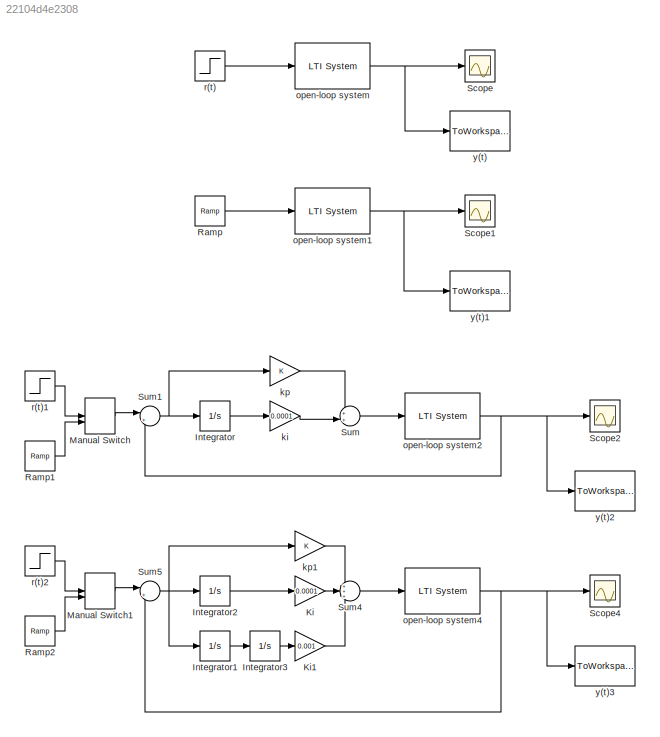
MODEL slx_22104d4e2308
KIND model
CONFIG AbsTol = auto
CONFIG EnableMultiTasking = off
CONFIG FixedStep = auto
CONFIG MaxStep = 1e-2
CONFIG MinStep = auto
CONFIG RelTol = 1e-3
CONFIG SampleTimeConstraint = Unconstrained
CONFIG SolverName = VariableStepAuto
CONFIG StartTime = 0.0
CONFIG StopTime = 15
BLOCK [Integrator] Integrator
BLOCK [Integrator] Integrator1
BLOCK [Integrator] Integrator2
BLOCK [Integrator] Integrator3
BLOCK [Gain] Ki
  Gain = 0.0001
BLOCK [Gain] Ki1
  Gain = 0.001
BLOCK [ManualSwitch] Manual Switch
BLOCK [ManualSwitch] Manual Switch1
BLOCK [Reference] Ramp  REF=simulink/Sources/Ramp
  SourceBlock = simulink/Sources/Ramp
  SourceType = Ramp
BLOCK [Reference] Ramp1  REF=simulink/Sources/Ramp
  SourceBlock = simulink/Sources/Ramp
  SourceType = Ramp
BLOCK [Reference] Ramp2  REF=simulink/Sources/Ramp
  SourceBlock = simulink/Sources/Ramp
  SourceType = Ramp
BLOCK [Scope] Scope
  Floating = off
  NumInputPorts = 1
  ScopeSpecificationString = Simulink.scopes.TimeScopeBlockCfg('CurrentConfiguration', extmgr.ConfigurationSet(extmgr.Configuration('Core','General UI',true),extmgr.Configuration('Core','Source UI',true),extmgr.Configuration('Sources','WiredSimulink',true),extmgr.Configuration('Visuals','Time Domain',true,'SerializedDisplays',{struct('MinYLimReal','-0.02646','MaxYLimReal','0.23812','YLabelReal','','MinYLimMag','0.00000','MaxY...<+1378ch>
BLOCK [Scope] Scope1
  Floating = off
  NumInputPorts = 1
  ScopeSpecificationString = Simulink.scopes.TimeScopeBlockCfg('CurrentConfiguration', extmgr.ConfigurationSet(extmgr.Configuration('Core','General UI',true),extmgr.Configuration('Core','Source UI',true),extmgr.Configuration('Sources','WiredSimulink',true,'DataLoggingVariableName','ScopeData1'),extmgr.Configuration('Visuals','Time Domain',true,'SerializedDisplays',{struct('MinYLimReal','-0.02646','MaxYLimReal','0.23812','YLab...<+1417ch>
BLOCK [Scope] Scope2
  Floating = off
  NumInputPorts = 1
  ScopeSpecificationString = Simulink.scopes.TimeScopeBlockCfg('CurrentConfiguration', extmgr.ConfigurationSet(extmgr.Configuration('Core','General UI',true),extmgr.Configuration('Core','Source UI',true),extmgr.Configuration('Sources','WiredSimulink',true,'DataLoggingVariableName','ScopeData2'),extmgr.Configuration('Visuals','Time Domain',true,'SerializedDisplays',{struct('MinYLimReal','-0.02266','MaxYLimReal','0.20397','YLab...<+1418ch>
BLOCK [Scope] Scope4
  Floating = off
  NumInputPorts = 1
  ScopeSpecificationString = Simulink.scopes.TimeScopeBlockCfg('CurrentConfiguration', extmgr.ConfigurationSet(extmgr.Configuration('Core','General UI',true),extmgr.Configuration('Core','Source UI',true),extmgr.Configuration('Sources','WiredSimulink',true,'DataLoggingVariableName','ScopeData4'),extmgr.Configuration('Visuals','Time Domain',true,'SerializedDisplays',{struct('MinYLimReal','-0.0227','MaxYLimReal','0.20431','YLabe...<+1416ch>
BLOCK [Sum] Sum
  Inputs = ++|
BLOCK [Sum] Sum1
  Inputs = |+-
BLOCK [Sum] Sum4
  Inputs = +++
BLOCK [Sum] Sum5
  Inputs = |+-
BLOCK [Gain] ki
  Gain = 0.0001
BLOCK [Gain] kp
BLOCK [Gain] kp1
BLOCK [Reference] open-loop system  REF=cstblocks/LTI System
  SourceBlock = cstblocks/LTI System
  SourceType = LTI Block
BLOCK [Reference] open-loop system1  REF=cstblocks/LTI System
  SourceBlock = cstblocks/LTI System
  SourceType = LTI Block
BLOCK [Reference] open-loop system2  REF=cstblocks/LTI System
  SourceBlock = cstblocks/LTI System
  SourceType = LTI Block
BLOCK [Reference] open-loop system4  REF=cstblocks/LTI System
  SourceBlock = cstblocks/LTI System
  SourceType = LTI Block
BLOCK [Step] r(t)
  SampleTime = 0
  Time = 0
BLOCK [Step] r(t)1
  SampleTime = 0
  Time = 0
BLOCK [Step] r(t)2
  SampleTime = 0
  Time = 0
BLOCK [ToWorkspace] y(t)
  FixptAsFi = on
  MaxDataPoints = inf
  SampleTime = -1
  SaveFormat = Timeseries
  VariableName = y
BLOCK [ToWorkspace] y(t)1
  FixptAsFi = on
  MaxDataPoints = inf
  SampleTime = -1
  SaveFormat = Timeseries
  VariableName = y1
BLOCK [ToWorkspace] y(t)2
  FixptAsFi = on
  MaxDataPoints = inf
  SampleTime = -1
  SaveFormat = Timeseries
  VariableName = y2
BLOCK [ToWorkspace] y(t)3
  FixptAsFi = on
  MaxDataPoints = inf
  SampleTime = -1
  SaveFormat = Timeseries
  VariableName = y3
LINE Integrator1:1 -> Integrator3:1
LINE Integrator2:1 -> Ki:1
LINE Integrator3:1 -> Ki1:1
LINE Integrator:1 -> ki:1
LINE Ki1:1 -> Sum4:3
LINE Ki:1 -> Sum4:2
LINE Manual Switch1:1 -> Sum5:1
LINE Manual Switch:1 -> Sum1:1
LINE Ramp1:1 -> Manual Switch:2
LINE Ramp2:1 -> Manual Switch1:2
LINE Ramp:1 -> open-loop system1:1
NET Sum1:1 -> Integrator:1, kp:1
LINE Sum4:1 -> open-loop system4:1
NET Sum5:1 -> Integrator1:1, Integrator2:1, kp1:1
LINE Sum:1 -> open-loop system2:1
LINE ki:1 -> Sum:2
LINE kp1:1 -> Sum4:1
LINE kp:1 -> Sum:1
NET open-loop system1:1 -> Scope1:1, y(t)1:1
NET open-loop system2:1 -> Scope2:1, Sum1:2, y(t)2:1
NET open-loop system4:1 -> Scope4:1, Sum5:2, y(t)3:1
NET open-loop system:1 -> Scope:1, y(t):1
LINE r(t)1:1 -> Manual Switch:1
LINE r(t)2:1 -> Manual Switch1:1
LINE r(t):1 -> open-loop system:1
note: NET lines group one-source signal fan-out (src -> all destinations, sorted); 1:1 wires keep LINE
